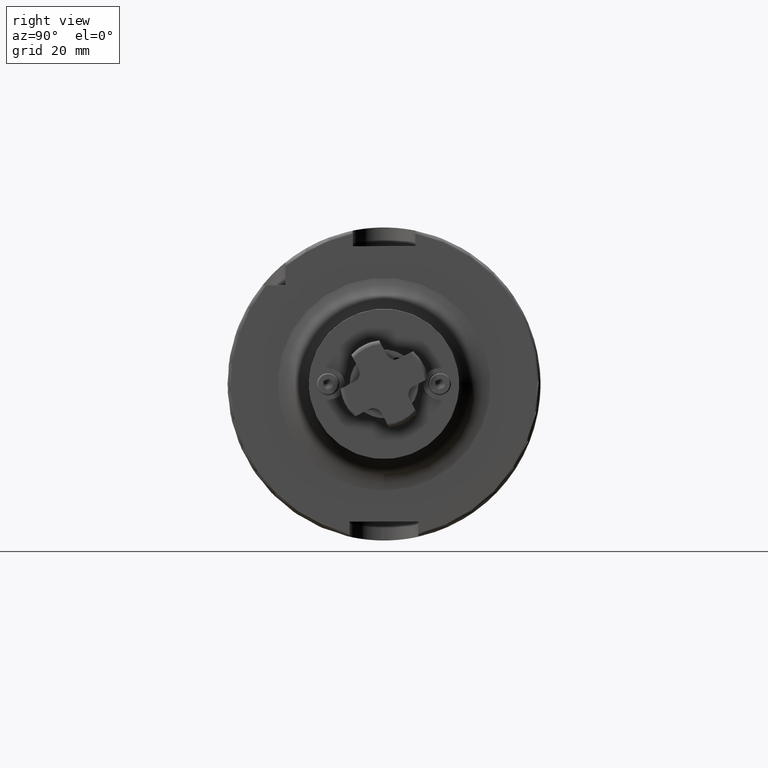
[diagram: clean part render]
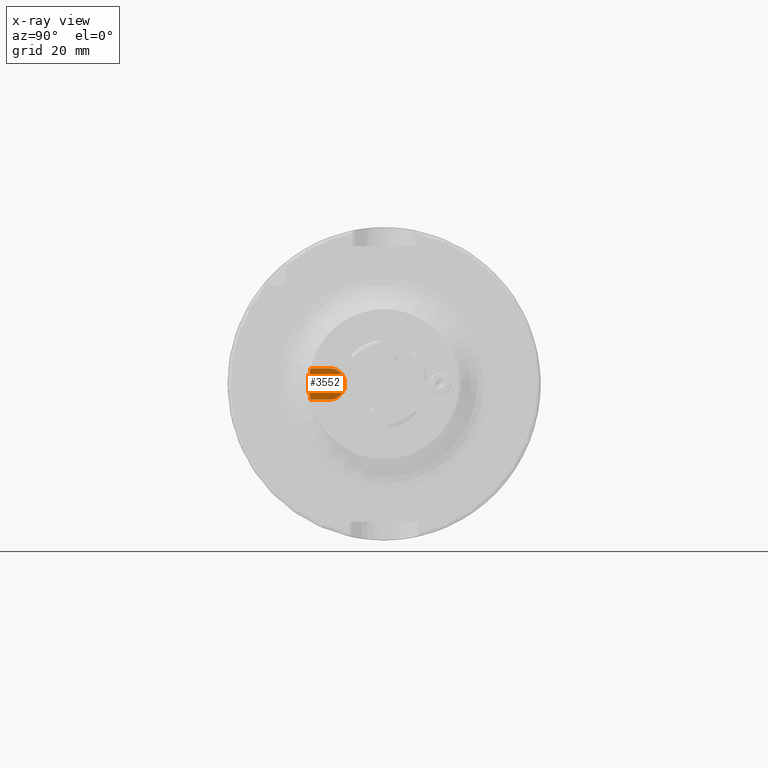
[diagram: x-ray — body ghosted, one internal face saturated and labeled with its STEP entity id]
A machine part, right view, then the same camera in x-ray: the body is ghosted and one INTERNAL B-rep face — a face not visible from any outside direction — is saturated and labeled: STEP entity #3552.
In plain terms, the highlighted planar face has unit normal (1, 0, 0).
Its self-contained STEP definition (entity closure, byte-faithful):
#674=FACE_BOUND('',#1014,.T.);
#698=PLANE('',#3941);
#832=FACE_OUTER_BOUND('',#1013,.T.);
#1013=EDGE_LOOP('',(#2619,#2620,#2621,#2622,#2623));
#1014=EDGE_LOOP('',(#2624));
#1219=LINE('',#5550,#1409);
#1220=LINE('',#5557,#1410);
#1409=VECTOR('',#4435,10.);
#1410=VECTOR('',#4442,10.);
#1596=CIRCLE('',#3942,24.);
#1597=CIRCLE('',#3943,4.99999999999999);
#1598=CIRCLE('',#3944,24.);
#1599=CIRCLE('',#3945,1.621);
#1824=VERTEX_POINT('',#5544);
#1826=VERTEX_POINT('',#5548);
#1827=VERTEX_POINT('',#5552);
#1828=VERTEX_POINT('',#5554);
#1829=VERTEX_POINT('',#5556);
#1830=VERTEX_POINT('',#5559);
#2139=EDGE_CURVE('',#1826,#1824,#1219,.T.);
#2140=EDGE_CURVE('',#1824,#1827,#1596,.T.);
#2141=EDGE_CURVE('',#1828,#1826,#1597,.T.);
#2142=EDGE_CURVE('',#1829,#1828,#1220,.T.);
#2143=EDGE_CURVE('',#1827,#1829,#1598,.T.);
#2144=EDGE_CURVE('',#1830,#1830,#1599,.T.);
#2619=ORIENTED_EDGE('',*,*,#2140,.F.);
#2620=ORIENTED_EDGE('',*,*,#2139,.F.);
#2621=ORIENTED_EDGE('',*,*,#2141,.F.);
#2622=ORIENTED_EDGE('',*,*,#2142,.F.);
#2623=ORIENTED_EDGE('',*,*,#2143,.F.);
#2624=ORIENTED_EDGE('',*,*,#2144,.F.);
#3552=ADVANCED_FACE('',(#832,#674),#698,.T.);
#3941=AXIS2_PLACEMENT_3D('',#5551,#4436,#4437);
#3942=AXIS2_PLACEMENT_3D('',#5553,#4438,#4439);
#3943=AXIS2_PLACEMENT_3D('',#5555,#4440,#4441);
#3944=AXIS2_PLACEMENT_3D('',#5558,#4443,#4444);
#3945=AXIS2_PLACEMENT_3D('',#5560,#4445,#4446);
#4435=DIRECTION('',(0.,-1.,-2.60370845818077E-16));
#4436=DIRECTION('center_axis',(1.,0.,0.));
#4437=DIRECTION('ref_axis',(0.,1.22464679914735E-16,1.));
#4438=DIRECTION('center_axis',(-1.,0.,0.));
#4439=DIRECTION('ref_axis',(0.,1.,0.));
#4440=DIRECTION('center_axis',(-1.,0.,0.));
#4441=DIRECTION('ref_axis',(0.,-1.22464679914735E-16,-1.));
#4442=DIRECTION('',(0.,1.,-1.22464679914735E-16));
#4443=DIRECTION('center_axis',(-1.,0.,0.));
#4444=DIRECTION('ref_axis',(0.,1.,0.));
#4445=DIRECTION('center_axis',(1.,0.,0.));
#4446=DIRECTION('ref_axis',(0.,1.22464679914735E-16,1.));
#5544=CARTESIAN_POINT('',(94.4,-23.473389188611,-5.));
#5548=CARTESIAN_POINT('',(94.4,-17.4,-5.));
#5550=CARTESIAN_POINT('',(94.4,-29.,-5.));
#5551=CARTESIAN_POINT('Origin',(94.4,-20.7,-7.95650199640446E-16));
#5552=CARTESIAN_POINT('',(94.4,-24.,-2.93915231795365E-15));
#5553=CARTESIAN_POINT('Origin',(94.4,0.,0.));
#5554=CARTESIAN_POINT('',(94.4,-17.4,5.));
#5555=CARTESIAN_POINT('Origin',(94.4,-17.4,-9.21299416247903E-15));
#5556=CARTESIAN_POINT('',(94.4,-23.473389188611,5.));
#5557=CARTESIAN_POINT('',(94.4,-17.4,5.));
#5558=CARTESIAN_POINT('Origin',(94.4,0.,0.));
#5559=CARTESIAN_POINT('',(94.4,-17.9,-1.621));
#5560=CARTESIAN_POINT('Origin',(94.4,-17.9,2.19211777047376E-15));